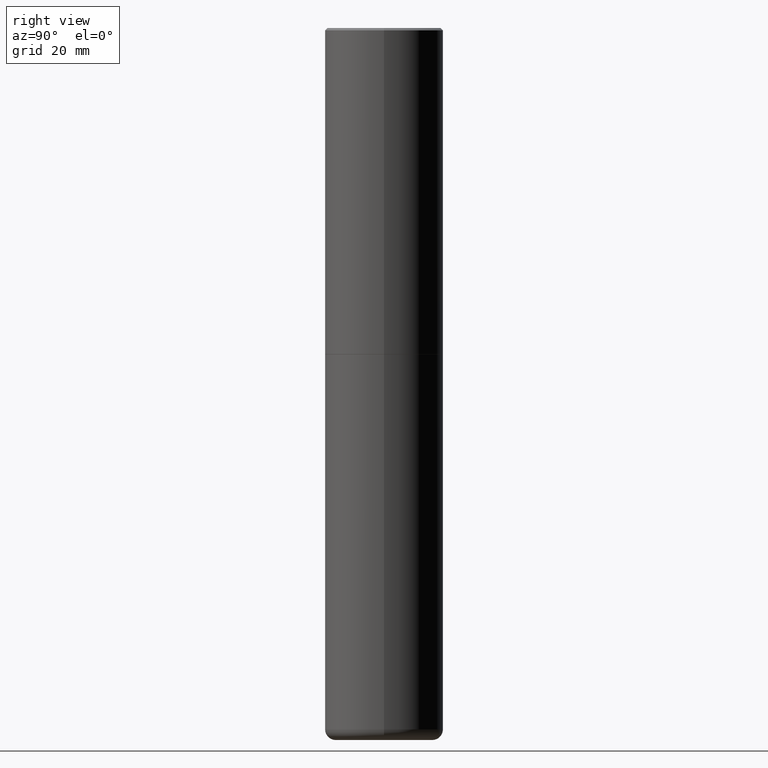
[diagram: clean part render]
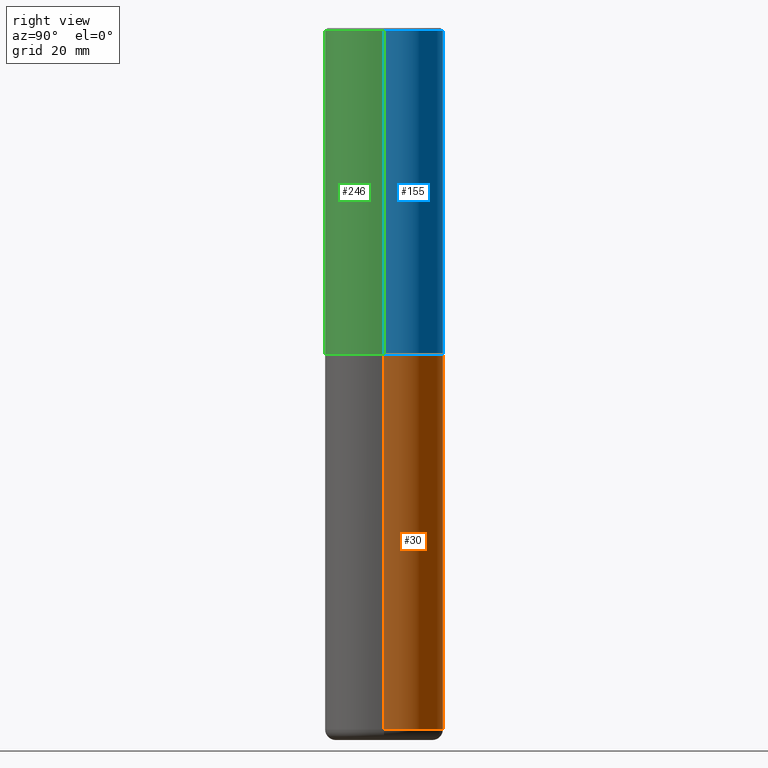
[diagram: same view with three faces highlighted in distinct colors, each labeled with its STEP entity id]
A machine part, right view with three faces highlighted in distinct colors.
Their STEP definitions:

[orange] entity #30 — the highlighted cylindrical surface (partial cylindrical patch) has radius 12.7 mm, axis along (-0, 0, 1).
#2 = ORIENTED_EDGE ( 'NONE', *, *, #136, .T. ) ;
#9 = EDGE_CURVE ( 'NONE', #137, #252, #268, .T. ) ;
#30 = ADVANCED_FACE ( 'NONE', ( #267 ), #120, .T. ) ;
#46 = LINE ( 'NONE', #424, #236 ) ;
#65 = AXIS2_PLACEMENT_3D ( 'NONE', #410, #368, #112 ) ;
#80 = DIRECTION ( 'NONE',  ( -2.445468806185136877E-29, 3.491481338843145188E-15, 1.000000000000000000 ) ) ;
#84 = CARTESIAN_POINT ( 'NONE',  ( -0.5000000000000000000, -1.156540650091130805E-14, -2.750000000000000444 ) ) ;
#112 = DIRECTION ( 'NONE',  ( 1.000000000000000000, -6.982962677686269077E-15, 0.000000000000000000 ) ) ;
#120 = CYLINDRICAL_SURFACE ( 'NONE', #330, 0.5000000000000000000 ) ;
#122 = ORIENTED_EDGE ( 'NONE', *, *, #350, .F. ) ;
#128 = DIRECTION ( 'NONE',  ( 1.000000000000000000, -6.982962677686266711E-15, 0.000000000000000000 ) ) ;
#136 = EDGE_CURVE ( 'NONE', #315, #252, #485, .T. ) ;
#137 = VERTEX_POINT ( 'NONE', #373 ) ;
#195 = EDGE_LOOP ( 'NONE', ( #339, #2, #284, #122 ) ) ;
#226 = EDGE_CURVE ( 'NONE', #245, #315, #361, .T. ) ;
#232 = CARTESIAN_POINT ( 'NONE',  ( -0.5000000000000000000, 3.552713678800500929E-15, -2.459467545127452891E-29 ) ) ;
#234 = DIRECTION ( 'NONE',  ( -2.445468806185136597E-29, 3.491481338843145583E-15, 1.000000000000000000 ) ) ;
#236 = VECTOR ( 'NONE', #80, 39.37007874015748143 ) ;
#245 = VERTEX_POINT ( 'NONE', #370 ) ;
#252 = VERTEX_POINT ( 'NONE', #84 ) ;
#255 = VECTOR ( 'NONE', #403, 39.37007874015748143 ) ;
#267 = FACE_OUTER_BOUND ( 'NONE', #195, .T. ) ;
#268 = CIRCLE ( 'NONE', #459, 0.5000000000000000000 ) ;
#270 = DIRECTION ( 'NONE',  ( -2.445468806185136597E-29, 3.491481338843145583E-15, 1.000000000000000000 ) ) ;
#272 = CARTESIAN_POINT ( 'NONE',  ( -0.5000000000000001110, -1.156540650091130647E-14, -5.910003426924223646 ) ) ;
#284 = ORIENTED_EDGE ( 'NONE', *, *, #9, .F. ) ;
#315 = VERTEX_POINT ( 'NONE', #272 ) ;
#330 = AXIS2_PLACEMENT_3D ( 'NONE', #409, #270, #411 ) ;
#339 = ORIENTED_EDGE ( 'NONE', *, *, #226, .T. ) ;
#350 = EDGE_CURVE ( 'NONE', #245, #137, #46, .T. ) ;
#361 = CIRCLE ( 'NONE', #65, 0.5000000000000001110 ) ;
#368 = DIRECTION ( 'NONE',  ( -2.445468806185136597E-29, 3.491481338843145583E-15, 1.000000000000000000 ) ) ;
#370 = CARTESIAN_POINT ( 'NONE',  ( 0.5000000000000001110, -2.412614801644810303E-14, -5.910003426924223646 ) ) ;
#373 = CARTESIAN_POINT ( 'NONE',  ( 0.5000000000000000000, -1.309305502066178637E-14, -2.750000000000000444 ) ) ;
#403 = DIRECTION ( 'NONE',  ( -2.445468806185136877E-29, 3.491481338843145188E-15, 1.000000000000000000 ) ) ;
#409 = CARTESIAN_POINT ( 'NONE',  ( 0.000000000000000000, 0.000000000000000000, 0.000000000000000000 ) ) ;
#410 = CARTESIAN_POINT ( 'NONE',  ( 1.445272902499044541E-28, -2.063466667760496652E-14, -5.910003426924223646 ) ) ;
#411 = DIRECTION ( 'NONE',  ( 1.000000000000000000, -6.982962677686266711E-15, 4.876176775795935793E-29 ) ) ;
#424 = CARTESIAN_POINT ( 'NONE',  ( 0.5000000000000000000, -3.491481338843133355E-15, 2.438088387897967896E-29 ) ) ;
#453 = CARTESIAN_POINT ( 'NONE',  ( 6.725039217009125641E-29, -9.601573681818653015E-15, -2.750000000000000444 ) ) ;
#459 = AXIS2_PLACEMENT_3D ( 'NONE', #453, #234, #128 ) ;
#485 = LINE ( 'NONE', #232, #255 ) ;

[blue] entity #155 — the highlighted cylindrical surface (partial cylindrical patch) has radius 12.7 mm, axis along (-0, 0, 1).
#26 = VECTOR ( 'NONE', #198, 39.37007874015748143 ) ;
#31 = DIRECTION ( 'NONE',  ( -2.445468806185136877E-29, 3.491481338843145188E-15, 1.000000000000000000 ) ) ;
#66 = LINE ( 'NONE', #483, #160 ) ;
#69 = CARTESIAN_POINT ( 'NONE',  ( 6.722593748202942280E-29, -9.598082200479810007E-15, -2.749000000000000554 ) ) ;
#75 = FACE_OUTER_BOUND ( 'NONE', #383, .T. ) ;
#83 = EDGE_CURVE ( 'NONE', #88, #248, #408, .T. ) ;
#88 = VERTEX_POINT ( 'NONE', #340 ) ;
#113 = DIRECTION ( 'NONE',  ( 1.000000000000000000, -6.982962677686267499E-15, 4.876176775795935793E-29 ) ) ;
#125 = CARTESIAN_POINT ( 'NONE',  ( -0.4999999999999990563, 3.421651712066262957E-15, -0.02000000000000020164 ) ) ;
#155 = ADVANCED_FACE ( 'NONE', ( #75 ), #269, .T. ) ;
#159 = CARTESIAN_POINT ( 'NONE',  ( 0.5000000000000000000, -1.308956353932294336E-14, -2.749000000000000554 ) ) ;
#160 = VECTOR ( 'NONE', #31, 39.37007874015748143 ) ;
#165 = ORIENTED_EDGE ( 'NONE', *, *, #83, .F. ) ;
#179 = EDGE_CURVE ( 'NONE', #321, #413, #215, .T. ) ;
#180 = EDGE_CURVE ( 'NONE', #321, #88, #66, .T. ) ;
#187 = DIRECTION ( 'NONE',  ( -2.445468806185136597E-29, 3.491481338843145583E-15, 1.000000000000000000 ) ) ;
#198 = DIRECTION ( 'NONE',  ( -2.445468806185136877E-29, 3.491481338843145188E-15, 1.000000000000000000 ) ) ;
#210 = DIRECTION ( 'NONE',  ( -2.445468806185136597E-29, 3.491481338843145583E-15, 1.000000000000000000 ) ) ;
#215 = CIRCLE ( 'NONE', #486, 0.5000000000000000000 ) ;
#238 = LINE ( 'NONE', #380, #26 ) ;
#248 = VERTEX_POINT ( 'NONE', #125 ) ;
#269 = CYLINDRICAL_SURFACE ( 'NONE', #386, 0.4999999999999995004 ) ;
#306 = CARTESIAN_POINT ( 'NONE',  ( 0.000000000000000000, 0.000000000000000000, 0.000000000000000000 ) ) ;
#321 = VERTEX_POINT ( 'NONE', #159 ) ;
#338 = DIRECTION ( 'NONE',  ( 1.000000000000000000, -6.982962677686266711E-15, 0.000000000000000000 ) ) ;
#340 = CARTESIAN_POINT ( 'NONE',  ( 0.4999999999999990563, -3.500078625662622769E-15, -0.02000000000000020164 ) ) ;
#358 = DIRECTION ( 'NONE',  ( 1.000000000000000000, -6.982962677686266711E-15, 0.000000000000000000 ) ) ;
#371 = DIRECTION ( 'NONE',  ( -2.445468806185136597E-29, 3.491481338843145583E-15, 1.000000000000000000 ) ) ;
#380 = CARTESIAN_POINT ( 'NONE',  ( -0.4999999999999995004, 3.552713678800497379E-15, -2.459467545127450649E-29 ) ) ;
#383 = EDGE_LOOP ( 'NONE', ( #429, #406, #165, #422 ) ) ;
#386 = AXIS2_PLACEMENT_3D ( 'NONE', #306, #187, #113 ) ;
#393 = EDGE_CURVE ( 'NONE', #413, #248, #238, .T. ) ;
#406 = ORIENTED_EDGE ( 'NONE', *, *, #393, .T. ) ;
#408 = CIRCLE ( 'NONE', #426, 0.4999999999999990563 ) ;
#413 = VERTEX_POINT ( 'NONE', #462 ) ;
#422 = ORIENTED_EDGE ( 'NONE', *, *, #180, .F. ) ;
#426 = AXIS2_PLACEMENT_3D ( 'NONE', #431, #210, #358 ) ;
#429 = ORIENTED_EDGE ( 'NONE', *, *, #179, .T. ) ;
#431 = CARTESIAN_POINT ( 'NONE',  ( 4.890937612370322204E-31, -6.982962677686361867E-17, -0.02000000000000020164 ) ) ;
#462 = CARTESIAN_POINT ( 'NONE',  ( -0.5000000000000000000, -1.281242234827831779E-15, -2.749000000000000554 ) ) ;
#483 = CARTESIAN_POINT ( 'NONE',  ( 0.4999999999999995004, -3.491481338843130200E-15, 2.438088387897965374E-29 ) ) ;
#486 = AXIS2_PLACEMENT_3D ( 'NONE', #69, #371, #338 ) ;

[green] entity #246 — the highlighted cylindrical surface (partial cylindrical patch) has radius 12.7 mm, axis along (-0, 0, 1).
#20 = CIRCLE ( 'NONE', #249, 0.4999999999999990563 ) ;
#26 = VECTOR ( 'NONE', #198, 39.37007874015748143 ) ;
#31 = DIRECTION ( 'NONE',  ( -2.445468806185136877E-29, 3.491481338843145188E-15, 1.000000000000000000 ) ) ;
#32 = CARTESIAN_POINT ( 'NONE',  ( 6.722593748202942280E-29, -9.598082200479810007E-15, -2.749000000000000554 ) ) ;
#33 = DIRECTION ( 'NONE',  ( -2.445468806185136597E-29, 3.491481338843145583E-15, 1.000000000000000000 ) ) ;
#51 = DIRECTION ( 'NONE',  ( 1.000000000000000000, -6.982962677686266711E-15, 0.000000000000000000 ) ) ;
#66 = LINE ( 'NONE', #483, #160 ) ;
#79 = ORIENTED_EDGE ( 'NONE', *, *, #103, .T. ) ;
#81 = CIRCLE ( 'NONE', #214, 0.5000000000000000000 ) ;
#88 = VERTEX_POINT ( 'NONE', #340 ) ;
#91 = CARTESIAN_POINT ( 'NONE',  ( 4.890937612370322204E-31, -6.982962677686361867E-17, -0.02000000000000020164 ) ) ;
#93 = DIRECTION ( 'NONE',  ( -2.445468806185136597E-29, 3.491481338843145583E-15, 1.000000000000000000 ) ) ;
#103 = EDGE_CURVE ( 'NONE', #413, #321, #81, .T. ) ;
#125 = CARTESIAN_POINT ( 'NONE',  ( -0.4999999999999990563, 3.421651712066262957E-15, -0.02000000000000020164 ) ) ;
#129 = DIRECTION ( 'NONE',  ( 1.000000000000000000, -6.982962677686267499E-15, 4.876176775795935793E-29 ) ) ;
#159 = CARTESIAN_POINT ( 'NONE',  ( 0.5000000000000000000, -1.308956353932294336E-14, -2.749000000000000554 ) ) ;
#160 = VECTOR ( 'NONE', #31, 39.37007874015748143 ) ;
#180 = EDGE_CURVE ( 'NONE', #321, #88, #66, .T. ) ;
#189 = CYLINDRICAL_SURFACE ( 'NONE', #366, 0.4999999999999995004 ) ;
#198 = DIRECTION ( 'NONE',  ( -2.445468806185136877E-29, 3.491481338843145188E-15, 1.000000000000000000 ) ) ;
#214 = AXIS2_PLACEMENT_3D ( 'NONE', #32, #93, #294 ) ;
#238 = LINE ( 'NONE', #380, #26 ) ;
#246 = ADVANCED_FACE ( 'NONE', ( #333 ), #189, .T. ) ;
#248 = VERTEX_POINT ( 'NONE', #125 ) ;
#249 = AXIS2_PLACEMENT_3D ( 'NONE', #91, #271, #51 ) ;
#257 = EDGE_CURVE ( 'NONE', #248, #88, #20, .T. ) ;
#271 = DIRECTION ( 'NONE',  ( -2.445468806185136597E-29, 3.491481338843145583E-15, 1.000000000000000000 ) ) ;
#294 = DIRECTION ( 'NONE',  ( 1.000000000000000000, -6.982962677686266711E-15, 0.000000000000000000 ) ) ;
#321 = VERTEX_POINT ( 'NONE', #159 ) ;
#333 = FACE_OUTER_BOUND ( 'NONE', #381, .T. ) ;
#335 = CARTESIAN_POINT ( 'NONE',  ( 0.000000000000000000, 0.000000000000000000, 0.000000000000000000 ) ) ;
#340 = CARTESIAN_POINT ( 'NONE',  ( 0.4999999999999990563, -3.500078625662622769E-15, -0.02000000000000020164 ) ) ;
#354 = ORIENTED_EDGE ( 'NONE', *, *, #180, .T. ) ;
#360 = ORIENTED_EDGE ( 'NONE', *, *, #393, .F. ) ;
#366 = AXIS2_PLACEMENT_3D ( 'NONE', #335, #33, #129 ) ;
#380 = CARTESIAN_POINT ( 'NONE',  ( -0.4999999999999995004, 3.552713678800497379E-15, -2.459467545127450649E-29 ) ) ;
#381 = EDGE_LOOP ( 'NONE', ( #360, #79, #354, #430 ) ) ;
#393 = EDGE_CURVE ( 'NONE', #413, #248, #238, .T. ) ;
#413 = VERTEX_POINT ( 'NONE', #462 ) ;
#430 = ORIENTED_EDGE ( 'NONE', *, *, #257, .F. ) ;
#462 = CARTESIAN_POINT ( 'NONE',  ( -0.5000000000000000000, -1.281242234827831779E-15, -2.749000000000000554 ) ) ;
#483 = CARTESIAN_POINT ( 'NONE',  ( 0.4999999999999995004, -3.491481338843130200E-15, 2.438088387897965374E-29 ) ) ;